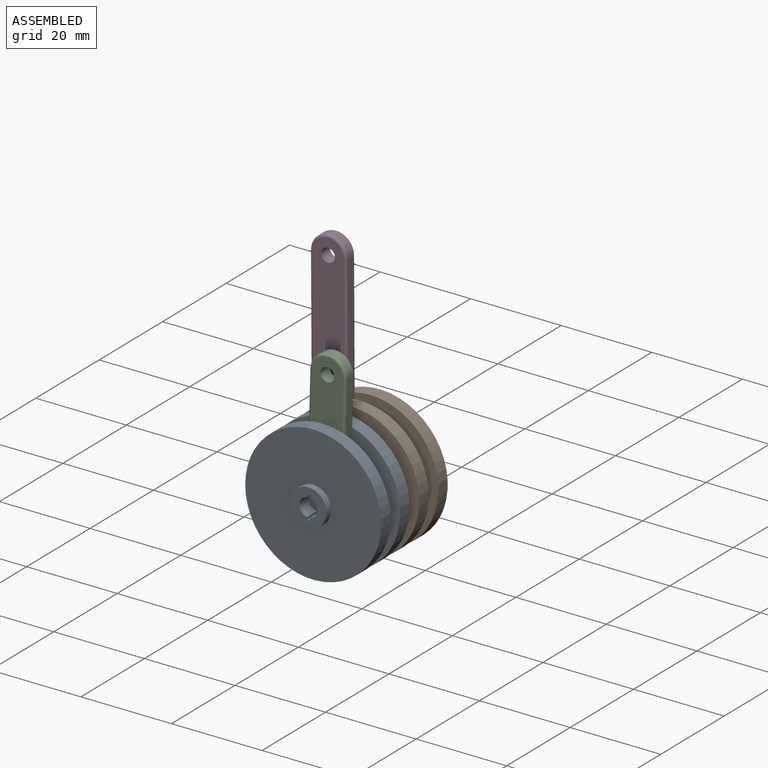
[diagram: assembled view]
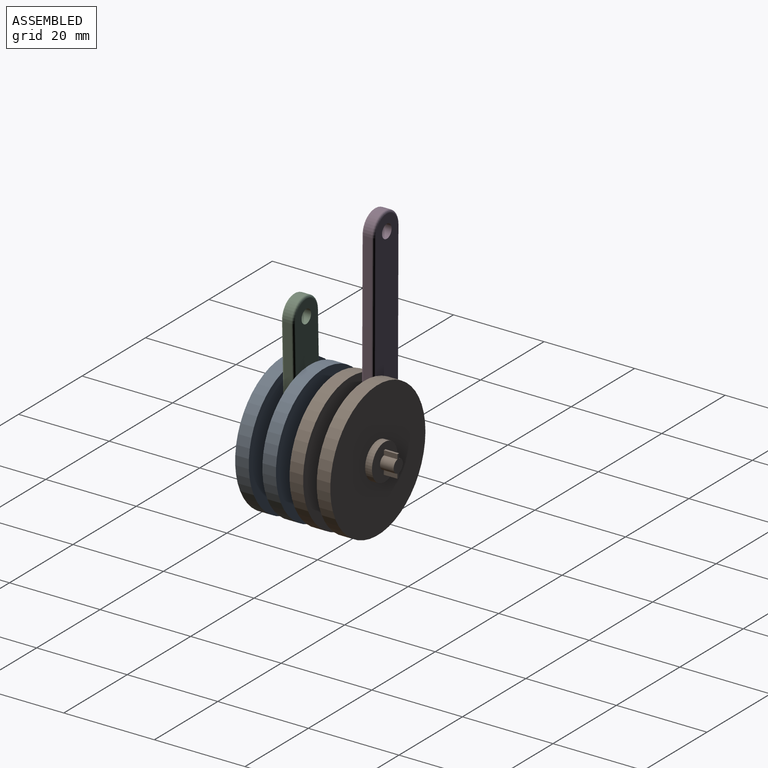
[diagram: assembled view, second angle]
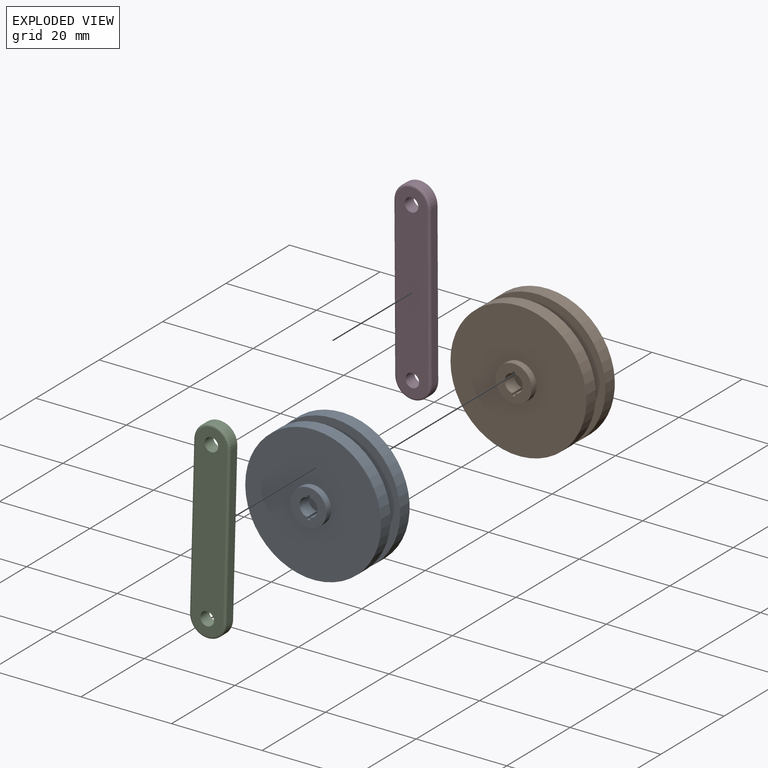
[diagram: exploded view]
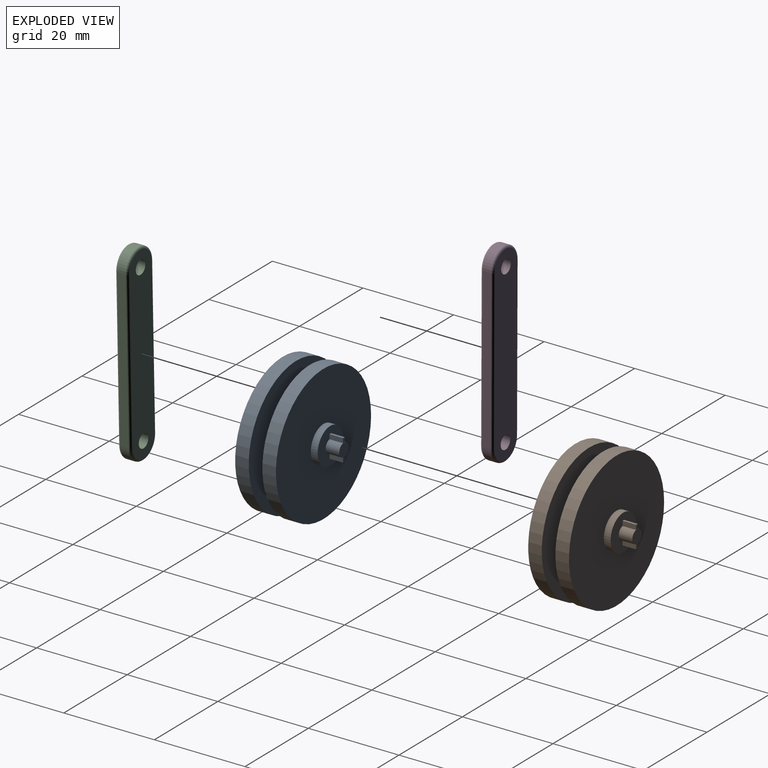
[diagram: exploded view, second angle]
ASSEMBLY  parts=4 mates=3
PART A: 29 faces, bbox 30x15x30 mm
  f0: plane 8x8mm, normal (0,1,0), area 42.7mm2, adj f7,f20,f21,f22,f23,f24,f25,f26
  f1: plane 8x8mm, normal (0,-1,0), area 37.1mm2, adj f2,f11,f12,f13,f14,f15,f16,f17
  f2: cylinder r=4mm len=8mm, axis (0,1,0), area 37.7mm2, adj f1,f5
  f3: cylinder r=15mm len=30mm, axis (0,-1,0), area 282.7mm2, adj f4,f5
  f4: plane 30x30mm, normal (0,1,0), area 656.6mm2, adj f3,f6
  f5: plane 30x30mm, normal (0,-1,0), area 656.6mm2, adj f2,f3
  f6: cylinder r=4mm len=8mm, axis (0,-1,0), area 75.4mm2, adj f4,f9
  f7: cylinder r=4mm len=8mm, axis (0,-1,0), area 37.7mm2, adj f0,f10
  f8: cylinder r=15mm len=30mm, axis (0,1,0), area 282.7mm2, adj f9,f10
  f9: plane 30x30mm, normal (0,-1,0), area 656.6mm2, adj f6,f8
  f10: plane 30x30mm, normal (0,1,0), area 656.6mm2, adj f7,f8
  f11: plane 3x0.52mm, normal (-1,0,0), area 1.6mm2, adj f1,f12,f18,f19
  f12: cylinder r=2mm len=3.95mm, axis (0,-1,0), area 17mm2, adj f1,f11,f13,f19
  f13: plane 3x0.52mm, normal (-1,0,0), area 1.6mm2, adj f1,f12,f14,f19
  f14: plane 3x0.6mm, normal (0,0,-1), area 1.8mm2, adj f1,f13,f15,f19
  f15: plane 3x0.52mm, normal (1,0,0), area 1.6mm2, adj f1,f14,f16,f19
  f16: cylinder r=2mm len=3.95mm, axis (0,-1,0), area 17mm2, adj f1,f15,f17,f19
  f17: plane 3x0.52mm, normal (1,0,0), area 1.6mm2, adj f1,f16,f18,f19
  f18: plane 3x0.6mm, normal (0,0,1), area 1.8mm2, adj f1,f11,f17,f19
  f19: plane 5x4mm, normal (0,-1,0), area 13.2mm2, adj f11,f12,f13,f14,f15,f16,f17,f18
  f20: plane 3x1.02mm, normal (-1,0,0), area 3.1mm2, adj f0,f21,f27,f28
  f21: cylinder r=1.45mm len=3mm, axis (0,-1,0), area 12.2mm2, adj f0,f20,f22,f28
  f22: plane 3x1.02mm, normal (-1,0,0), area 3.1mm2, adj f0,f21,f23,f28
  f23: plane 3x0.5mm, normal (0,0,1), area 1.5mm2, adj f0,f22,f24,f28
  f24: plane 3x1.02mm, normal (1,0,0), area 3.1mm2, adj f0,f23,f25,f28
  f25: cylinder r=1.45mm len=3mm, axis (0,-1,0), area 12.2mm2, adj f0,f24,f26,f28
  f26: plane 3x1.02mm, normal (1,0,0), area 3.1mm2, adj f0,f25,f27,f28
  f27: plane 3x0.5mm, normal (0,0,-1), area 1.5mm2, adj f0,f20,f26,f28
  f28: plane 4.9x2.9mm, normal (0,1,0), area 7.6mm2, adj f20,f21,f22,f23,f24,f25,f26,f27
PART B: 29 faces, bbox 30x15x30 mm
  f0: plane 8x8mm, normal (0,1,0), area 42.7mm2, adj f7,f20,f21,f22,f23,f24,f25,f26
  f1: plane 8x8mm, normal (0,-1,0), area 37.1mm2, adj f2,f11,f12,f13,f14,f15,f16,f17
  f2: cylinder r=4mm len=8mm, axis (0,1,0), area 37.7mm2, adj f1,f5
  f3: cylinder r=15mm len=30mm, axis (0,-1,0), area 282.7mm2, adj f4,f5
  f4: plane 30x30mm, normal (0,1,0), area 656.6mm2, adj f3,f6
  f5: plane 30x30mm, normal (0,-1,0), area 656.6mm2, adj f2,f3
  f6: cylinder r=4mm len=8mm, axis (0,-1,0), area 75.4mm2, adj f4,f9
  f7: cylinder r=4mm len=8mm, axis (0,-1,0), area 37.7mm2, adj f0,f10
  f8: cylinder r=15mm len=30mm, axis (0,1,0), area 282.7mm2, adj f9,f10
  f9: plane 30x30mm, normal (0,-1,0), area 656.6mm2, adj f6,f8
  f10: plane 30x30mm, normal (0,1,0), area 656.6mm2, adj f7,f8
  f11: plane 3x0.52mm, normal (-1,0,0), area 1.6mm2, adj f1,f12,f18,f19
  f12: cylinder r=2mm len=3.95mm, axis (0,-1,0), area 17mm2, adj f1,f11,f13,f19
  f13: plane 3x0.52mm, normal (-1,0,0), area 1.6mm2, adj f1,f12,f14,f19
  f14: plane 3x0.6mm, normal (0,0,-1), area 1.8mm2, adj f1,f13,f15,f19
  f15: plane 3x0.52mm, normal (1,0,0), area 1.6mm2, adj f1,f14,f16,f19
  f16: cylinder r=2mm len=3.95mm, axis (0,-1,0), area 17mm2, adj f1,f15,f17,f19
  f17: plane 3x0.52mm, normal (1,0,0), area 1.6mm2, adj f1,f16,f18,f19
  f18: plane 3x0.6mm, normal (0,0,1), area 1.8mm2, adj f1,f11,f17,f19
  f19: plane 5x4mm, normal (0,-1,0), area 13.2mm2, adj f11,f12,f13,f14,f15,f16,f17,f18
  f20: plane 3x1.02mm, normal (-1,0,0), area 3.1mm2, adj f0,f21,f27,f28
  f21: cylinder r=1.45mm len=3mm, axis (0,-1,0), area 12.2mm2, adj f0,f20,f22,f28
  f22: plane 3x1.02mm, normal (-1,0,0), area 3.1mm2, adj f0,f21,f23,f28
  f23: plane 3x0.5mm, normal (0,0,1), area 1.5mm2, adj f0,f22,f24,f28
  f24: plane 3x1.02mm, normal (1,0,0), area 3.1mm2, adj f0,f23,f25,f28
  f25: cylinder r=1.45mm len=3mm, axis (0,-1,0), area 12.2mm2, adj f0,f24,f26,f28
  f26: plane 3x1.02mm, normal (1,0,0), area 3.1mm2, adj f0,f25,f27,f28
  f27: plane 3x0.5mm, normal (0,0,-1), area 1.5mm2, adj f0,f20,f26,f28
  f28: plane 4.9x2.9mm, normal (0,1,0), area 7.6mm2, adj f20,f21,f22,f23,f24,f25,f26,f27
PART C: 16 faces, bbox 2.8x8.7x43.7 mm
  f0: plane 35x1.8mm, normal (0,-1,0), area 63mm2, adj f4,f5,f11,f15
  f1: plane 42x7mm, normal (1,0,0), area 269.3mm2, adj f6,f7,f8,f9,f10,f11
  f2: plane 35x1.8mm, normal (0,1,0), area 63mm2, adj f4,f5,f8,f12
  f3: plane 42x7mm, normal (-1,0,0), area 269.3mm2, adj f6,f7,f12,f13,f14,f15
  f4: cylinder r=4mm len=8mm, axis (1,0,0), area 22.6mm2, adj f0,f2,f10,f14
  f5: cylinder r=4mm len=8mm, axis (-1,0,0), area 22.6mm2, adj f0,f2,f9,f13
  f6: cylinder r=1.5mm len=3mm, axis (-1,0,0), area 26.4mm2, adj f1,f3
  f7: cylinder r=1.5mm len=3mm, axis (-1,0,0), area 26.4mm2, adj f1,f3
  f8: cylinder r=0.5mm len=35mm, axis (0,0,1), area 27.5mm2, adj f1,f2,f9,f10
  f9: torus R=3.5mm, axis (1,0,0), area 9.4mm2, adj f1,f5,f8,f11
  f10: torus R=3.5mm, axis (1,0,0), area 9.4mm2, adj f1,f4,f8,f11
  f11: cylinder r=0.5mm len=35mm, axis (0,0,-1), area 27.5mm2, adj f0,f1,f9,f10
  f12: cylinder r=0.5mm len=35mm, axis (0,0,-1), area 27.5mm2, adj f2,f3,f13,f14
  f13: torus R=3.5mm, axis (1,0,0), area 9.4mm2, adj f3,f5,f12,f15
  f14: torus R=3.5mm, axis (1,0,0), area 9.4mm2, adj f3,f4,f12,f15
  f15: cylinder r=0.5mm len=35mm, axis (0,0,1), area 27.5mm2, adj f0,f3,f13,f14
PART D: same geometry as C
PLACE A rot(axis=(0,1,0),179.7deg) t=(167.01,43.23,126.71)mm
PLACE B rot(axis=(0,1,0),179.7deg) t=(167.01,55.23,126.71)mm
PLACE C rot(axis=(-0.01,0.01,-1),90deg) t=(166.95,47.73,112.71)mm
PLACE D rot(axis=(0,0,-1),90deg) t=(159.92,59.73,129.75)mm
MATE fastened A.f2 <-> B.f2  axis (0,1,0) through (167.01,53.73,126.71)mm
MATE revolute B.f6 <-> D.f4  axis (0,-1,0) through (159.9,59.73,133.75)mm
MATE revolute C.f4 <-> A.f6  axis (0,1,0) through (167.05,47.73,116.71)mm
